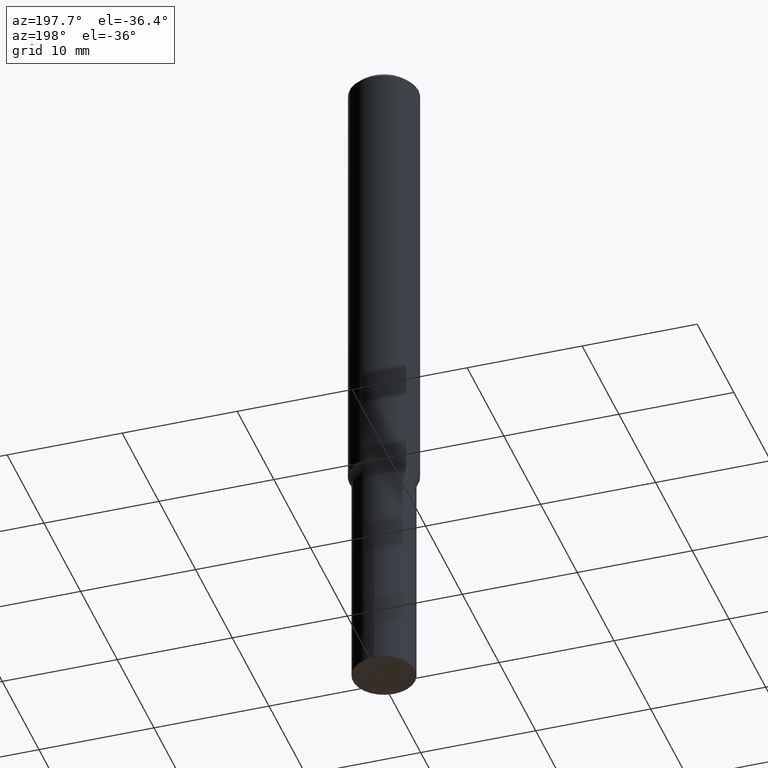
[diagram: clean part render]
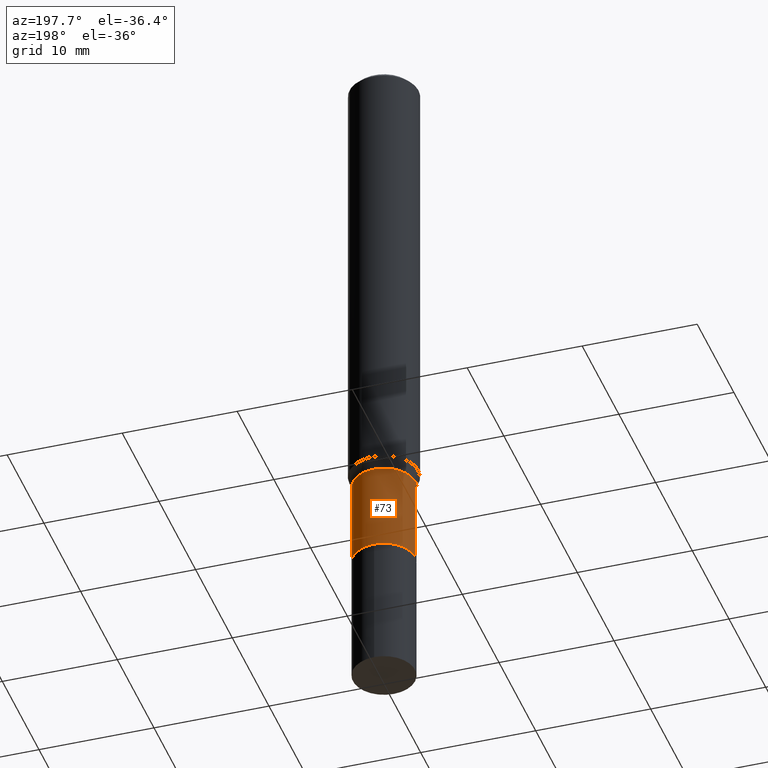
[diagram: same view with one face highlighted and labeled with its STEP entity id]
A machine part, auxiliary view. The second image highlights one B-rep face of the part: STEP entity #73.
In plain terms, the highlighted cylindrical surface (edge-blend (fillet) strip) has radius 2.7 mm, axis along (-0, 0, 1).
Its self-contained STEP definition (entity closure, byte-faithful):
#8 = DIRECTION ( 'NONE',  ( 1.000000000000000000, -6.982962677686269077E-15, 0.000000000000000000 ) ) ;
#28 = CARTESIAN_POINT ( 'NONE',  ( 0.000000000000000000, 0.000000000000000000, 0.000000000000000000 ) ) ;
#29 = LINE ( 'NONE', #332, #383 ) ;
#42 = VERTEX_POINT ( 'NONE', #296 ) ;
#49 = DIRECTION ( 'NONE',  ( -2.445468806185136877E-29, 3.491481338843145188E-15, 1.000000000000000000 ) ) ;
#57 = EDGE_CURVE ( 'NONE', #124, #375, #399, .T. ) ;
#69 = AXIS2_PLACEMENT_3D ( 'NONE', #362, #105, #8 ) ;
#73 = ADVANCED_FACE ( 'NONE', ( #256 ), #404, .T. ) ;
#98 = VERTEX_POINT ( 'NONE', #215 ) ;
#99 = ORIENTED_EDGE ( 'NONE', *, *, #149, .F. ) ;
#105 = DIRECTION ( 'NONE',  ( -2.445468806185136597E-29, 3.491481338843145583E-15, 1.000000000000000000 ) ) ;
#111 = EDGE_CURVE ( 'NONE', #42, #375, #29, .T. ) ;
#114 = AXIS2_PLACEMENT_3D ( 'NONE', #221, #366, #335 ) ;
#124 = VERTEX_POINT ( 'NONE', #128 ) ;
#128 = CARTESIAN_POINT ( 'NONE',  ( 0.1062999999999999640, -6.329706519188737709E-15, -1.600300000000000500 ) ) ;
#130 = CARTESIAN_POINT ( 'NONE',  ( -0.1062999999999999640, -5.363514118209626835E-15, -1.600300000000000500 ) ) ;
#140 = EDGE_LOOP ( 'NONE', ( #442, #380, #373, #99 ) ) ;
#149 = EDGE_CURVE ( 'NONE', #98, #124, #381, .T. ) ;
#215 = CARTESIAN_POINT ( 'NONE',  ( 0.1063000000000000056, -7.392513438732591680E-15, -1.904700000000000282 ) ) ;
#221 = CARTESIAN_POINT ( 'NONE',  ( 3.913483730538075020E-29, -5.587417586550687570E-15, -1.600300000000000500 ) ) ;
#256 = FACE_OUTER_BOUND ( 'NONE', #140, .T. ) ;
#290 = DIRECTION ( 'NONE',  ( 1.000000000000000000, -6.982962677686267499E-15, 4.876176775795935232E-29 ) ) ;
#296 = CARTESIAN_POINT ( 'NONE',  ( -0.1063000000000000056, -5.363514118209626835E-15, -1.904700000000000282 ) ) ;
#332 = CARTESIAN_POINT ( 'NONE',  ( -0.1062999999999999917, 7.553069281129864387E-16, -5.228828000940964357E-30 ) ) ;
#335 = DIRECTION ( 'NONE',  ( 1.000000000000000000, -6.982962677686271444E-15, 0.000000000000000000 ) ) ;
#362 = CARTESIAN_POINT ( 'NONE',  ( 4.657884435140829962E-29, -6.650224506094540752E-15, -1.904700000000000282 ) ) ;
#366 = DIRECTION ( 'NONE',  ( -2.445468806185136597E-29, 3.491481338843145583E-15, 1.000000000000000000 ) ) ;
#373 = ORIENTED_EDGE ( 'NONE', *, *, #57, .F. ) ;
#375 = VERTEX_POINT ( 'NONE', #130 ) ;
#376 = AXIS2_PLACEMENT_3D ( 'NONE', #28, #432, #290 ) ;
#380 = ORIENTED_EDGE ( 'NONE', *, *, #111, .T. ) ;
#381 = LINE ( 'NONE', #389, #437 ) ;
#383 = VECTOR ( 'NONE', #464, 39.37007874015748143 ) ;
#389 = CARTESIAN_POINT ( 'NONE',  ( 0.1062999999999999917, -7.422889326380501387E-16, 5.183375912671078649E-30 ) ) ;
#399 = CIRCLE ( 'NONE', #114, 0.1062999999999999640 ) ;
#404 = CYLINDRICAL_SURFACE ( 'NONE', #376, 0.1062999999999999917 ) ;
#424 = CIRCLE ( 'NONE', #69, 0.1063000000000000056 ) ;
#432 = DIRECTION ( 'NONE',  ( -2.445468806185136597E-29, 3.491481338843145583E-15, 1.000000000000000000 ) ) ;
#437 = VECTOR ( 'NONE', #49, 39.37007874015748143 ) ;
#442 = ORIENTED_EDGE ( 'NONE', *, *, #461, .T. ) ;
#461 = EDGE_CURVE ( 'NONE', #98, #42, #424, .T. ) ;
#464 = DIRECTION ( 'NONE',  ( -2.445468806185136877E-29, 3.491481338843145188E-15, 1.000000000000000000 ) ) ;